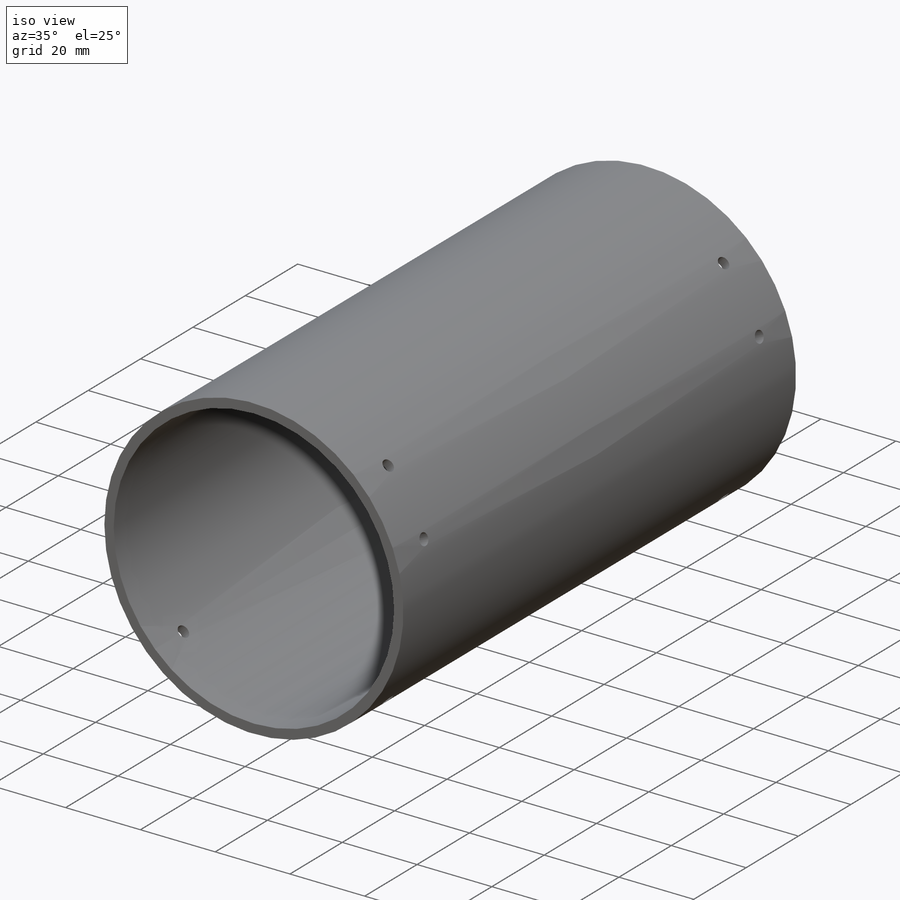
[diagram: iso view]
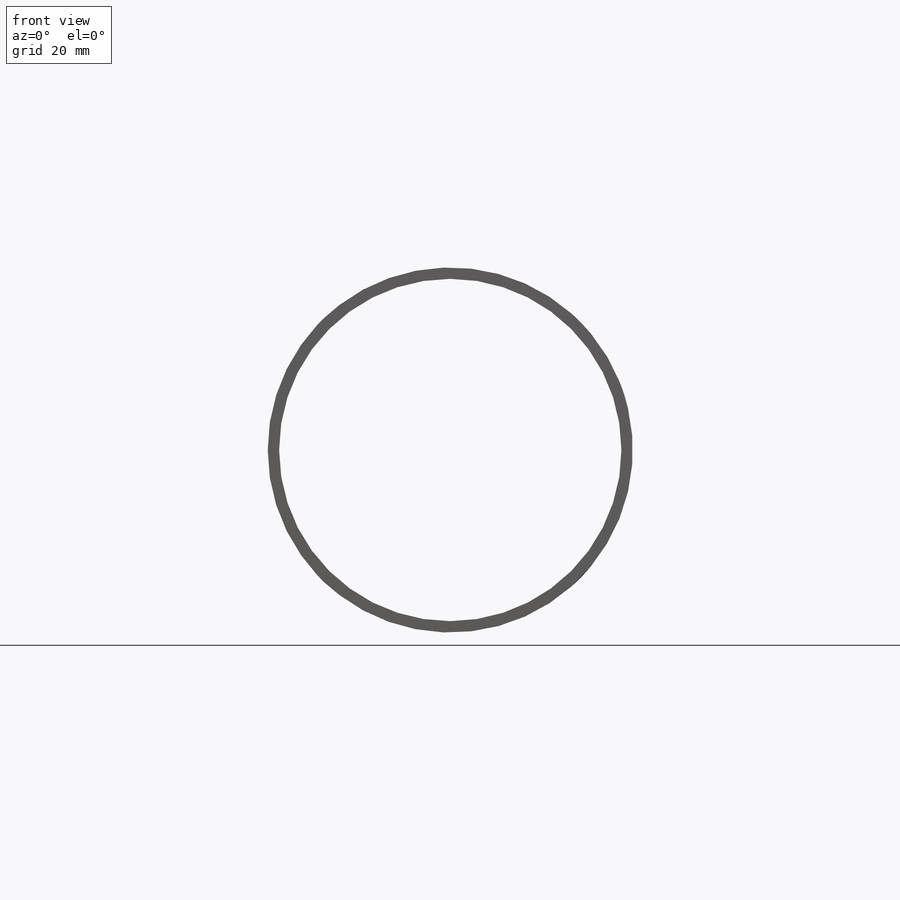
[diagram: front view]
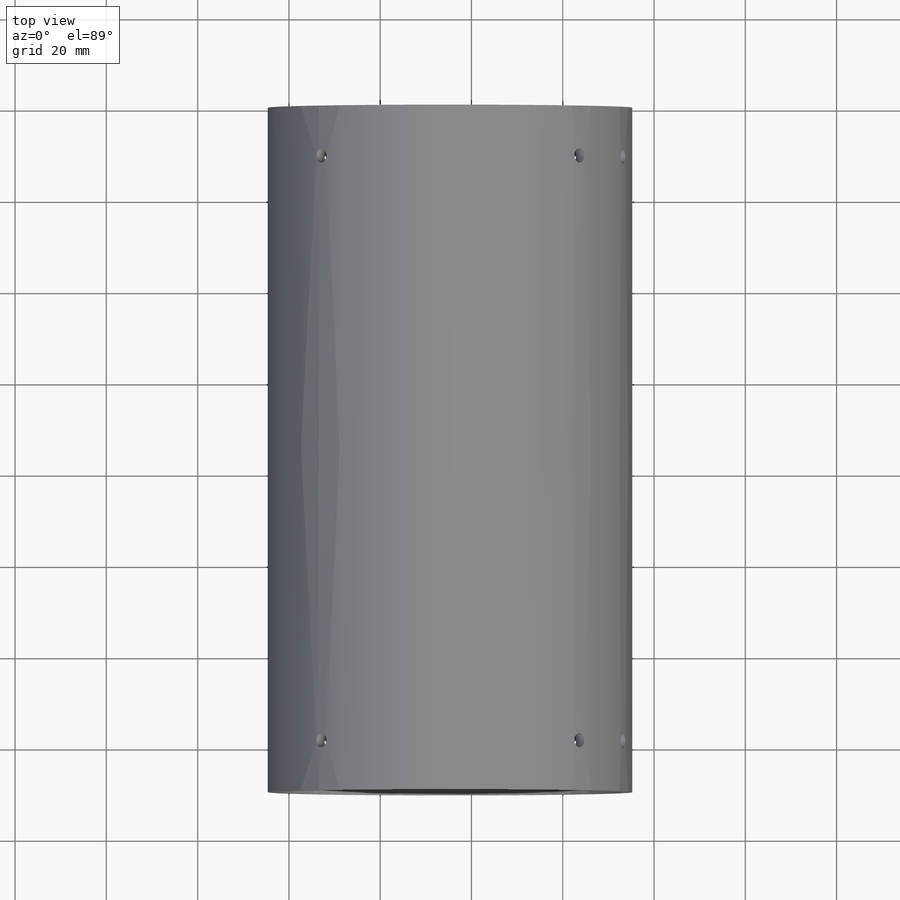
[diagram: top view]
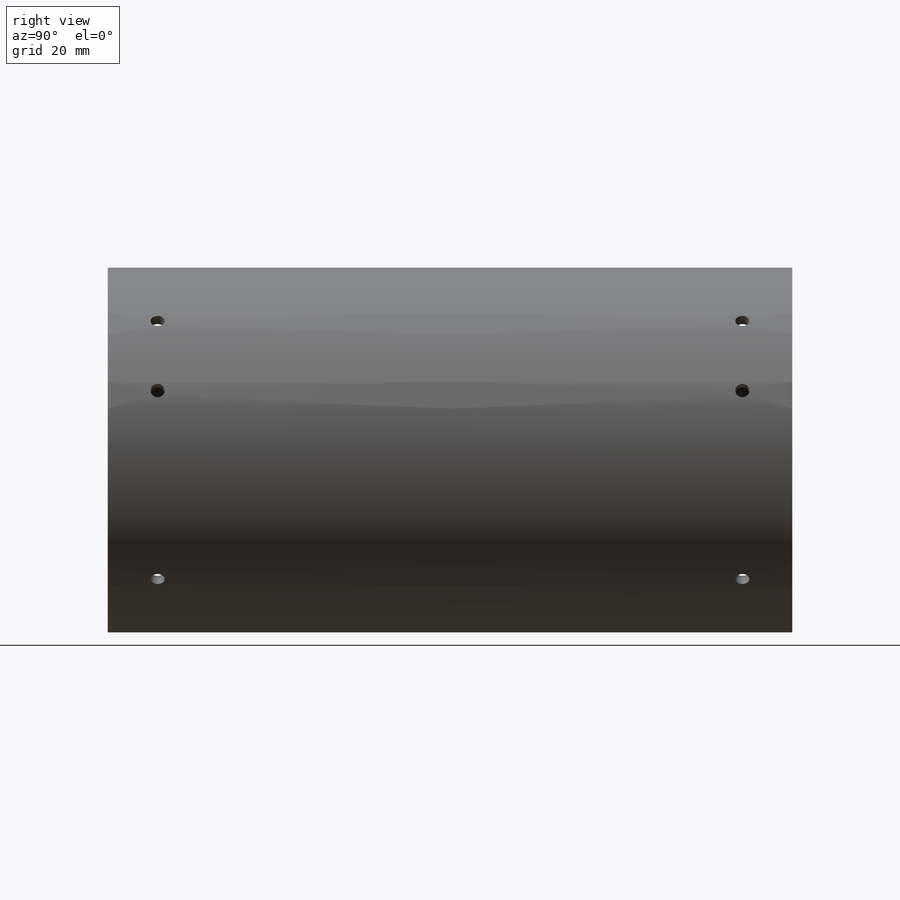
[diagram: right view]
SOLIDWORKS PART (.sldprt)
format: sldprt  version: not decoded by parser v0  size: 203,776 bytes
history: native  units: mm
features: plane x5, sketch x2, pattern_circular x2, material x1, revolve x1, cut_extrude x1 (+9 scaffold rows collapsed)
feature tree (21):
  scaffold x9  (default folders/planes/origin — collapsed)
  material  "PVC Rígido"
  plane  "Plano frontal"
  plane  "Plano superior"
  plane  "Plano direito"
  plane  "Plano1"
  sketch  "Esboço1"  dims[D1=150.0mm]
  revolve  "Revolução1"  Angle=360deg
  plane  "Plano2"
  sketch  "Esboço3"  dims[D1=3.1mm D3=3.1mm D2=10.94mm D4=10.94mm]
  cut_extrude  "Corte-extrusão2"  Depth=10mm
  pattern_circular  "PadrãoCircular2"  Count=4 Angle=90deg
  pattern_circular  "PadrãoCircular3"  Count=2 Angle=26deg
decode coverage: 6 of 6 modeling features carry decoded parameters
note: suppression state not decoded; provenance and decode notes live in map.json
